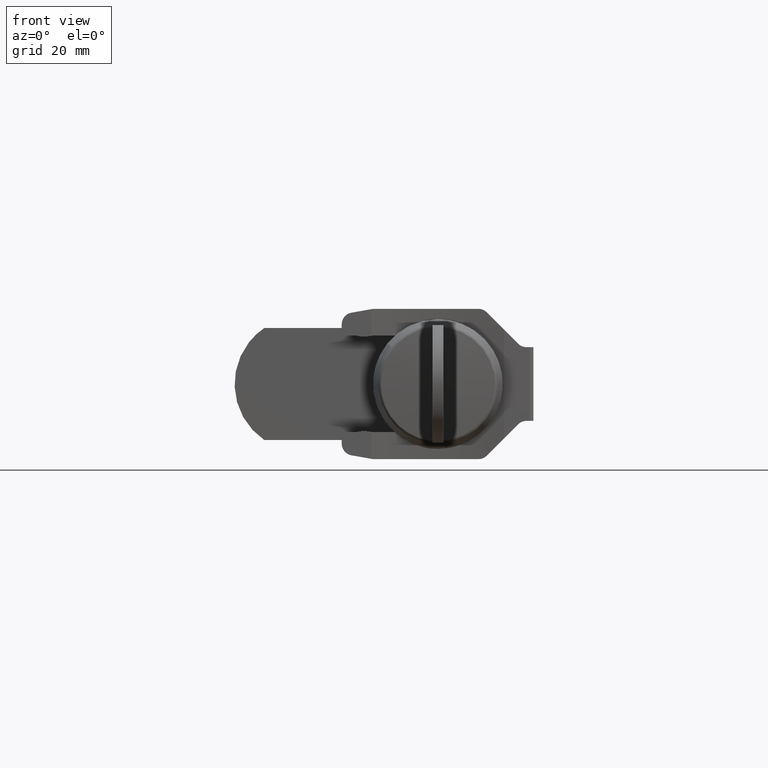
[diagram: clean part render]
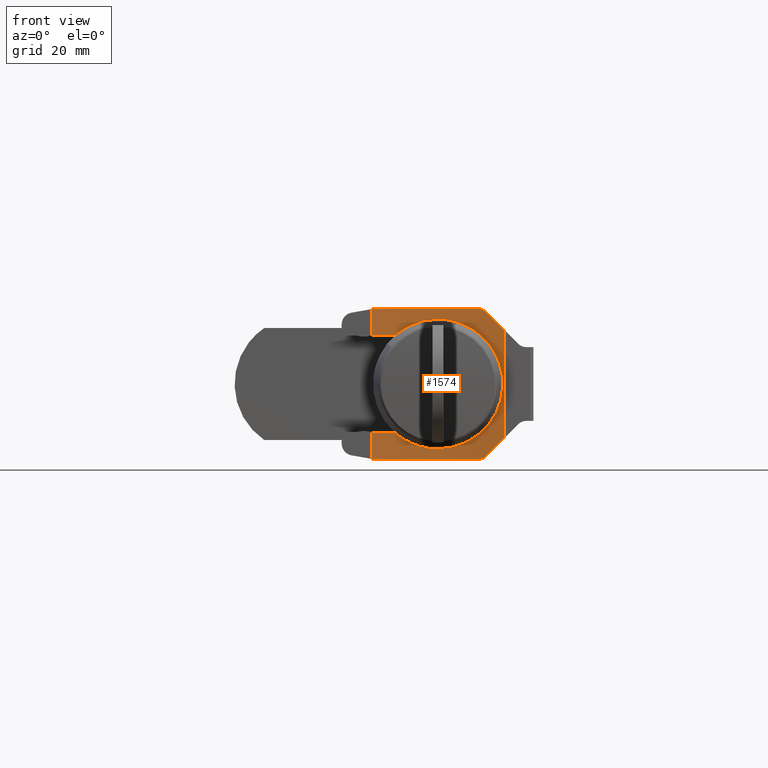
[diagram: same view with one face highlighted and labeled with its STEP entity id]
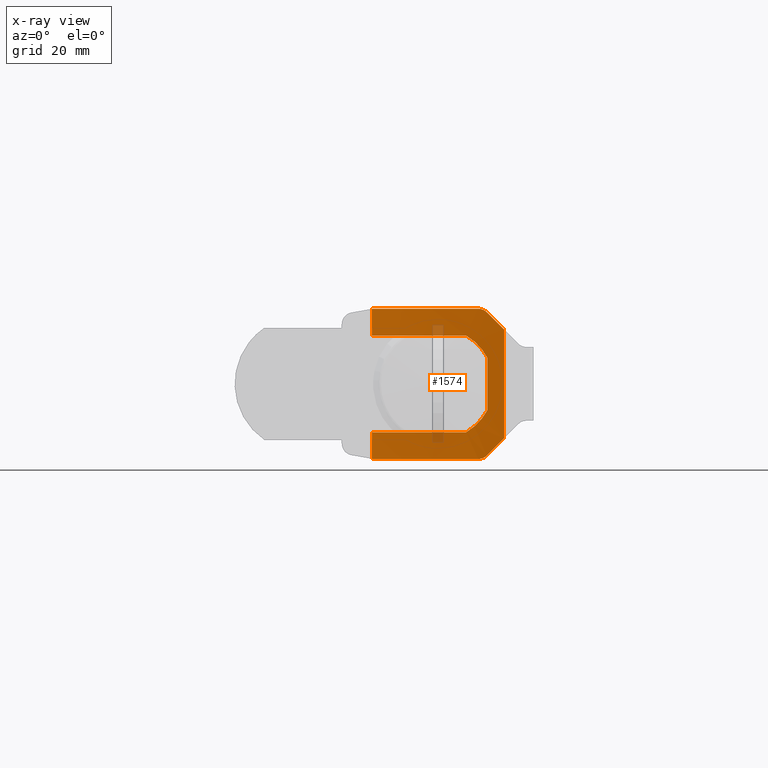
[diagram: x-ray of the same camera — body ghosted, the highlighted face saturated]
A machine part, front view. The second image highlights one B-rep face of the part: STEP entity #1574.
The next image is the same camera in x-ray: the body ghosted, the highlighted face saturated — about 3% of this face is hidden behind the body in this view.
In plain terms, the highlighted face is a freeform B-spline surface patch.
Its self-contained STEP definition (entity closure, byte-faithful):
#171=CARTESIAN_POINT('',(6.701256000000000,11.224889015041621,-12.710345971922139));
#172=VERTEX_POINT('',#171);
#201=CARTESIAN_POINT('',(6.737179202216060,11.0,-12.750000000000000));
#202=VERTEX_POINT('',#201);
#208=CARTESIAN_POINT('',(6.701256000000000,11.224889015041621,-12.710345971922139));
#209=CARTESIAN_POINT('',(6.719399350802776,11.112473539753079,-12.730167866791707));
#210=CARTESIAN_POINT('',(6.737179202216060,11.0,-12.750000000000000));
#218=(BOUNDED_CURVE()B_SPLINE_CURVE(2,(#208,#209,#210),.UNSPECIFIED.,.F.,.U.)CURVE()GEOMETRIC_REPRESENTATION_ITEM()QUASI_UNIFORM_CURVE()RATIONAL_B_SPLINE_CURVE((1.0,0.999998693911222,1.0))REPRESENTATION_ITEM(''));
#219=EDGE_CURVE('',#172,#202,#218,.T.);
#237=CARTESIAN_POINT('',(6.701256000000000,11.224889015041679,12.710345971922139));
#238=VERTEX_POINT('',#237);
#244=CARTESIAN_POINT('',(6.737179202216060,11.0,12.750000000000000));
#245=VERTEX_POINT('',#244);
#246=CARTESIAN_POINT('',(6.737179202216060,11.0,12.750000000000000));
#247=CARTESIAN_POINT('',(6.719399350802083,11.112473539757451,12.730167866790929));
#248=CARTESIAN_POINT('',(6.701256000000000,11.224889015041679,12.710345971922139));
#256=(BOUNDED_CURVE()B_SPLINE_CURVE(2,(#246,#247,#248),.UNSPECIFIED.,.F.,.U.)CURVE()GEOMETRIC_REPRESENTATION_ITEM()QUASI_UNIFORM_CURVE()RATIONAL_B_SPLINE_CURVE((1.0,0.999998693685393,1.0))REPRESENTATION_ITEM(''));
#257=EDGE_CURVE('',#245,#238,#256,.T.);
#298=CARTESIAN_POINT('',(7.437756559511180,-4.796873982084749,8.199999999999900));
#299=VERTEX_POINT('',#298);
#324=CARTESIAN_POINT('',(7.098675235076141,-8.400000000000000,4.437341546466749));
#325=VERTEX_POINT('',#324);
#331=CARTESIAN_POINT('',(7.437756559511180,-4.796873982084749,8.199999999999900));
#332=CARTESIAN_POINT('',(7.411649741750969,-5.179400142912241,7.976228074592561));
#333=CARTESIAN_POINT('',(7.383798323459934,-5.541706129844096,7.728542165214912));
#334=CARTESIAN_POINT('',(7.326299027665645,-6.227658055632018,7.187290586248619));
#335=CARTESIAN_POINT('',(7.296645575295067,-6.551298648907652,6.893719117221099));
#336=CARTESIAN_POINT('',(7.259486747010025,-6.931349469674033,6.497572574249896));
#337=CARTESIAN_POINT('',(7.252050530538040,-7.006129048879556,6.416877480835693));
#338=CARTESIAN_POINT('',(7.237196090471132,-7.153195711641636,6.252515650885004));
#339=CARTESIAN_POINT('',(7.229766695813301,-7.225589416448715,6.168719304727475));
#340=CARTESIAN_POINT('',(7.207633577062738,-7.438140985198493,5.913799099289979));
#341=CARTESIAN_POINT('',(7.193112970023629,-7.573424323080626,5.739492669629554));
#342=CARTESIAN_POINT('',(7.150561252174983,-7.960285834896091,5.203650425940917));
#343=CARTESIAN_POINT('',(7.123537934107416,-8.192969541685143,4.829255450689331));
#344=CARTESIAN_POINT('',(7.098675235076141,-8.400000000000000,4.437341546466749));
#345=B_SPLINE_CURVE_WITH_KNOTS('',3,(#331,#332,#333,#334,#335,#336,#337,#338,#339,#340,#341,#342,#343,#344),.UNSPECIFIED.,.F.,.U.,(4,2,2,2,2,2,4),(0.0,0.250000000000000,0.499999999999999,0.562499999999999,0.624999999999999,0.750000000000000,1.0),.UNSPECIFIED.);
#346=EDGE_CURVE('',#299,#325,#345,.T.);
#356=CARTESIAN_POINT('',(6.737179185010520,11.000000108840499,8.199999999999871));
#357=VERTEX_POINT('',#356);
#358=CARTESIAN_POINT('',(7.437756559511180,-4.796873982084749,8.199999999999900));
#359=CARTESIAN_POINT('',(7.979512653375348,3.141124459328319,8.199999999999871));
#360=CARTESIAN_POINT('',(6.737179185010520,11.000000108840499,8.199999999999871));
#368=(BOUNDED_CURVE()B_SPLINE_CURVE(2,(#358,#359,#360),.UNSPECIFIED.,.F.,.U.)CURVE()GEOMETRIC_REPRESENTATION_ITEM()QUASI_UNIFORM_CURVE()RATIONAL_B_SPLINE_CURVE((1.0,0.993682715742125,1.0))REPRESENTATION_ITEM(''));
#369=EDGE_CURVE('',#299,#357,#368,.T.);
#409=CARTESIAN_POINT('',(6.701256000000000,11.224889015041660,8.150979196819019));
#410=VERTEX_POINT('',#409);
#411=CARTESIAN_POINT('',(6.737179185010520,11.000000108840499,8.199999999999871));
#412=CARTESIAN_POINT('',(6.725370661431742,11.074699632578650,8.182329583521096));
#413=CARTESIAN_POINT('',(6.713397150677370,11.149662931459570,8.165990187034085));
#414=CARTESIAN_POINT('',(6.701256000000000,11.224889015041660,8.150979196819019));
#415=QUASI_UNIFORM_CURVE('',3,(#411,#412,#413,#414),.UNSPECIFIED.,.F.,.U.);
#416=EDGE_CURVE('',#357,#410,#415,.T.);
#480=CARTESIAN_POINT('',(6.701256000000000,11.224889015041660,-8.150980196819130));
#481=VERTEX_POINT('',#480);
#482=CARTESIAN_POINT('',(6.737179202216170,11.0,-8.200000000000221));
#483=VERTEX_POINT('',#482);
#484=CARTESIAN_POINT('',(6.701256000000000,11.224889015041660,-8.150980196819130));
#485=CARTESIAN_POINT('',(6.713397144291805,11.149662971024380,-8.165991179139207));
#486=CARTESIAN_POINT('',(6.725370648838812,11.074699711419370,-8.182330566336889));
#487=CARTESIAN_POINT('',(6.737179202216170,11.0,-8.200000000000221));
#488=QUASI_UNIFORM_CURVE('',3,(#484,#485,#486,#487),.UNSPECIFIED.,.F.,.U.);
#489=EDGE_CURVE('',#481,#483,#488,.T.);
#550=CARTESIAN_POINT('',(7.437756559511110,-4.796873982084200,-8.200000000000211));
#551=VERTEX_POINT('',#550);
#552=CARTESIAN_POINT('',(6.737179202216170,11.0,-8.200000000000221));
#553=CARTESIAN_POINT('',(7.979512649575971,3.141124403659279,-8.200000000000211));
#554=CARTESIAN_POINT('',(7.437756559511080,-4.796873982084190,-8.200000000000211));
#562=(BOUNDED_CURVE()B_SPLINE_CURVE(2,(#552,#553,#554),.UNSPECIFIED.,.F.,.U.)CURVE()GEOMETRIC_REPRESENTATION_ITEM()QUASI_UNIFORM_CURVE()RATIONAL_B_SPLINE_CURVE((1.0,0.993682715829894,1.0))REPRESENTATION_ITEM(''));
#563=EDGE_CURVE('',#483,#551,#562,.T.);
#605=CARTESIAN_POINT('',(7.098675235076141,-8.400000000000000,-4.437341546466755));
#606=VERTEX_POINT('',#605);
#630=CARTESIAN_POINT('',(7.098675235076141,-8.400000000000000,-4.437341546466755));
#631=CARTESIAN_POINT('',(7.123538574757169,-8.192964207027455,-4.829265549331529));
#632=CARTESIAN_POINT('',(7.150452930807292,-7.961161418627665,-5.202000869036179));
#633=CARTESIAN_POINT('',(7.206693991478534,-7.450059500262535,-5.910796699045458));
#634=CARTESIAN_POINT('',(7.236026098237167,-7.170754234661588,-6.246852057131341));
#635=CARTESIAN_POINT('',(7.273179659211994,-6.791424942180425,-6.643688889621473));
#636=CARTESIAN_POINT('',(7.280634688406300,-6.714042293584815,-6.721889343477574));
#637=CARTESIAN_POINT('',(7.295566972048070,-6.556202282428012,-6.875926984624601));
#638=CARTESIAN_POINT('',(7.303055526204961,-6.475620087673217,-6.951876263772649));
#639=CARTESIAN_POINT('',(7.325426327157862,-6.230148460058721,-7.175249583976715));
#640=CARTESIAN_POINT('',(7.340185056212576,-6.061871328388646,-7.317939567528402));
#641=CARTESIAN_POINT('',(7.383684424332686,-5.543319985537322,-7.727593260627449));
#642=CARTESIAN_POINT('',(7.411650187846649,-5.179393606561731,-7.976231898257201));
#643=CARTESIAN_POINT('',(7.437756559511100,-4.796873982084190,-8.200000000000232));
#644=B_SPLINE_CURVE_WITH_KNOTS('',3,(#630,#631,#632,#633,#634,#635,#636,#637,#638,#639,#640,#641,#642,#643),.UNSPECIFIED.,.F.,.U.,(4,2,2,2,2,2,4),(0.0,0.250000000000000,0.500000000000001,0.562500000000001,0.625000000000001,0.750000000000001,1.0),.UNSPECIFIED.);
#645=EDGE_CURVE('',#606,#551,#644,.T.);
#655=CARTESIAN_POINT('',(7.098675235076141,-8.400000000000000,-4.437341546466755));
#656=CARTESIAN_POINT('',(7.098675235076141,-8.400000000000000,4.437341546466749));
#657=QUASI_UNIFORM_CURVE('',1,(#655,#656),.UNSPECIFIED.,.F.,.U.);
#658=EDGE_CURVE('',#606,#325,#657,.T.);
#822=CARTESIAN_POINT('',(7.112296928359621,-8.285785304922289,-12.164213695077800));
#823=VERTEX_POINT('',#822);
#829=CARTESIAN_POINT('',(7.265329503481880,-6.871571875253689,-12.750000000000000));
#830=VERTEX_POINT('',#829);
#831=CARTESIAN_POINT('',(7.265329503481870,-6.871571875253689,-12.750000000000000));
#832=CARTESIAN_POINT('',(7.252392960293121,-7.003567922342728,-12.750000000000000));
#833=CARTESIAN_POINT('',(7.239298978243952,-7.133333390520710,-12.737061222085931));
#834=CARTESIAN_POINT('',(7.219461569553152,-7.324779351012579,-12.699060243223480));
#835=CARTESIAN_POINT('',(7.212816693591436,-7.388057049535646,-12.683271374732170));
#836=CARTESIAN_POINT('',(7.199473280523453,-7.513514619359334,-12.645311229561520));
#837=CARTESIAN_POINT('',(7.192752296867116,-7.575892906099058,-12.623024141592500));
#838=CARTESIAN_POINT('',(7.172960994306771,-7.757400187441930,-12.547903890435540));
#839=CARTESIAN_POINT('',(7.160127764479002,-7.872192590280910,-12.486607505171509));
#840=CARTESIAN_POINT('',(7.141546606920476,-8.035157529566755,-12.377983502885311));
#841=CARTESIAN_POINT('',(7.135455740874443,-8.088013601539988,-12.338907942070360));
#842=CARTESIAN_POINT('',(7.123575719816867,-8.190154197441594,-12.255224096750450));
#843=CARTESIAN_POINT('',(7.117831311999205,-8.239056420825273,-12.210942570404869));
#844=CARTESIAN_POINT('',(7.112296928359621,-8.285785304922289,-12.164213695077800));
#845=B_SPLINE_CURVE_WITH_KNOTS('',3,(#831,#832,#833,#834,#835,#836,#837,#838,#839,#840,#841,#842,#843,#844),.UNSPECIFIED.,.F.,.U.,(4,2,2,2,2,2,4),(0.0,0.250000000000001,0.375000000000000,0.500000000000000,0.750000000000001,0.875000000000001,1.0),.UNSPECIFIED.);
#846=EDGE_CURVE('',#830,#823,#845,.T.);
#891=CARTESIAN_POINT('',(7.265329503481880,-6.871571875253689,12.750000000000000));
#892=VERTEX_POINT('',#891);
#898=CARTESIAN_POINT('',(7.112296928359630,-8.285785304922239,12.164213695077720));
#899=VERTEX_POINT('',#898);
#900=CARTESIAN_POINT('',(7.112296928359630,-8.285785304922239,12.164213695077720));
#901=CARTESIAN_POINT('',(7.123365589934081,-8.192328429232823,12.257670553227751));
#902=CARTESIAN_POINT('',(7.135140011251933,-8.091315184443046,12.340339389621191));
#903=CARTESIAN_POINT('',(7.153658335553827,-7.928947363516358,12.448880618361549));
#904=CARTESIAN_POINT('',(7.159975375723761,-7.873003192517571,12.482464612759260));
#905=CARTESIAN_POINT('',(7.172880247388083,-7.757392114656093,12.544330187319231));
#906=CARTESIAN_POINT('',(7.179490822099289,-7.697509698307850,12.572666659311890));
#907=CARTESIAN_POINT('',(7.199279814478769,-7.516038608871599,12.647843719417979));
#908=CARTESIAN_POINT('',(7.212537784527823,-7.391551845148769,12.685626330771870));
#909=CARTESIAN_POINT('',(7.232433943089783,-7.199609066821544,12.723993089226930));
#910=CARTESIAN_POINT('',(7.239080001191859,-7.134635694023776,12.733720461165721));
#911=CARTESIAN_POINT('',(7.252317363819204,-7.003379386326845,12.746741400586989));
#912=CARTESIAN_POINT('',(7.258861450591744,-6.937567667282686,12.750000000000000));
#913=CARTESIAN_POINT('',(7.265329503481870,-6.871571875253689,12.750000000000000));
#914=B_SPLINE_CURVE_WITH_KNOTS('',3,(#900,#901,#902,#903,#904,#905,#906,#907,#908,#909,#910,#911,#912,#913),.UNSPECIFIED.,.F.,.U.,(4,2,2,2,2,2,4),(0.0,0.249999999999997,0.374999999999997,0.499999999999998,0.749999999999999,0.875000000000000,1.0),.UNSPECIFIED.);
#915=EDGE_CURVE('',#899,#892,#914,.T.);
#991=CARTESIAN_POINT('',(6.701255999999920,-11.224889015041580,-9.225110536547600));
#992=VERTEX_POINT('',#991);
#993=CARTESIAN_POINT('',(7.112296928359621,-8.285785304922289,-12.164213695077800));
#994=CARTESIAN_POINT('',(6.937736232605532,-9.759666960223838,-10.690332316383463));
#995=CARTESIAN_POINT('',(6.701255999999920,-11.224889015041580,-9.225110536547600));
#1003=(BOUNDED_CURVE()B_SPLINE_CURVE(2,(#993,#994,#995),.UNSPECIFIED.,.F.,.U.)CURVE()GEOMETRIC_REPRESENTATION_ITEM()QUASI_UNIFORM_CURVE()RATIONAL_B_SPLINE_CURVE((1.0,0.999778154284892,1.0))REPRESENTATION_ITEM(''));
#1004=EDGE_CURVE('',#823,#992,#1003,.T.);
#1100=CARTESIAN_POINT('',(6.701255999999920,-11.224889015041580,9.225110536547600));
#1101=VERTEX_POINT('',#1100);
#1129=CARTESIAN_POINT('',(6.701255999999920,-11.224889015041580,9.225110536547600));
#1130=CARTESIAN_POINT('',(6.937736232605546,-9.759666960223726,10.690332316383479));
#1131=CARTESIAN_POINT('',(7.112296928359630,-8.285785304922239,12.164213695077720));
#1139=(BOUNDED_CURVE()B_SPLINE_CURVE(2,(#1129,#1130,#1131),.UNSPECIFIED.,.F.,.U.)CURVE()GEOMETRIC_REPRESENTATION_ITEM()QUASI_UNIFORM_CURVE()RATIONAL_B_SPLINE_CURVE((1.0,0.999778154286036,1.0))REPRESENTATION_ITEM(''));
#1140=EDGE_CURVE('',#1101,#899,#1139,.T.);
#1210=CARTESIAN_POINT('',(7.265329503481855,-6.871571875253700,12.750000000000000));
#1211=CARTESIAN_POINT('',(8.144410511173609,2.097997227817485,12.749999999999998));
#1212=CARTESIAN_POINT('',(6.737179202216060,11.0,12.750000000000000));
#1220=(BOUNDED_CURVE()B_SPLINE_CURVE(2,(#1210,#1211,#1212),.UNSPECIFIED.,.F.,.U.)CURVE()GEOMETRIC_REPRESENTATION_ITEM()QUASI_UNIFORM_CURVE()RATIONAL_B_SPLINE_CURVE((1.0,0.991916035415188,1.0))REPRESENTATION_ITEM(''));
#1221=EDGE_CURVE('',#892,#245,#1220,.T.);
#1245=CARTESIAN_POINT('',(7.265329503481855,-6.871571875253700,-12.750000000000000));
#1246=CARTESIAN_POINT('',(8.144410511173609,2.097997227817485,-12.749999999999998));
#1247=CARTESIAN_POINT('',(6.737179202216032,10.999999999999980,-12.750000000000000));
#1255=(BOUNDED_CURVE()B_SPLINE_CURVE(2,(#1245,#1246,#1247),.UNSPECIFIED.,.F.,.U.)CURVE()GEOMETRIC_REPRESENTATION_ITEM()QUASI_UNIFORM_CURVE()RATIONAL_B_SPLINE_CURVE((1.0,0.991916035415188,1.0))REPRESENTATION_ITEM(''));
#1256=EDGE_CURVE('',#830,#202,#1255,.T.);
#1337=CARTESIAN_POINT('',(6.701255999999920,-11.224889015041580,-9.225110536547600));
#1338=CARTESIAN_POINT('',(6.701255999999920,-11.224889015041580,9.225110536547600));
#1339=QUASI_UNIFORM_CURVE('',1,(#1337,#1338),.UNSPECIFIED.,.F.,.U.);
#1340=EDGE_CURVE('',#992,#1101,#1339,.T.);
#1514=CARTESIAN_POINT('',(6.701256000000000,11.224889015041660,8.150979196819019));
#1515=CARTESIAN_POINT('',(6.701256000000000,11.224889015041679,12.710345971922139));
#1516=QUASI_UNIFORM_CURVE('',1,(#1514,#1515),.UNSPECIFIED.,.F.,.U.);
#1517=EDGE_CURVE('',#410,#238,#1516,.T.);
#1530=CARTESIAN_POINT('',(6.701256000000000,11.224889015041621,-12.710345971922139));
#1531=CARTESIAN_POINT('',(6.701256000000000,11.224889015041660,-8.150980196819130));
#1532=QUASI_UNIFORM_CURVE('',1,(#1530,#1531),.UNSPECIFIED.,.F.,.U.);
#1533=EDGE_CURVE('',#172,#481,#1532,.T.);
#1540=CARTESIAN_POINT('',(6.514150433440410,12.328386802758894,-13.387500000000006));
#1541=CARTESIAN_POINT('',(6.514150433440410,12.328386802758894,13.403437423706054));
#1542=CARTESIAN_POINT('',(8.705646738916723,-0.001389731535335,-13.387499999999999));
#1543=CARTESIAN_POINT('',(8.705646738916723,-0.001389731535335,13.403437423706052));
#1544=CARTESIAN_POINT('',(6.513671489569327,-12.331081128678955,-13.387499999999999));
#1545=CARTESIAN_POINT('',(6.513671489569327,-12.331081128678955,13.403437423706052));
#1553=(BOUNDED_SURFACE()B_SPLINE_SURFACE(1,2,((#1540,#1542,#1544),(#1541,#1543,#1545)),.UNSPECIFIED.,.F.,.F.,.U.)B_SPLINE_SURFACE_WITH_KNOTS((2,2),(3,3),(0.0,26.790937423706058),(0.732068968361616,25.584636377745870),.UNSPECIFIED.)GEOMETRIC_REPRESENTATION_ITEM()RATIONAL_B_SPLINE_SURFACE(((0.998990860818196,0.982315163434144,0.996439557006956),(0.998990860818196,0.982315163434144,0.996439557006956)))REPRESENTATION_ITEM('')SURFACE());
#1554=ORIENTED_EDGE('',*,*,#1533,.F.);
#1555=ORIENTED_EDGE('',*,*,#219,.T.);
#1556=ORIENTED_EDGE('',*,*,#1256,.F.);
#1557=ORIENTED_EDGE('',*,*,#846,.T.);
#1558=ORIENTED_EDGE('',*,*,#1004,.T.);
#1559=ORIENTED_EDGE('',*,*,#1340,.T.);
#1560=ORIENTED_EDGE('',*,*,#1140,.T.);
#1561=ORIENTED_EDGE('',*,*,#915,.T.);
#1562=ORIENTED_EDGE('',*,*,#1221,.T.);
#1563=ORIENTED_EDGE('',*,*,#257,.T.);
#1564=ORIENTED_EDGE('',*,*,#1517,.F.);
#1565=ORIENTED_EDGE('',*,*,#416,.F.);
#1566=ORIENTED_EDGE('',*,*,#369,.F.);
#1567=ORIENTED_EDGE('',*,*,#346,.T.);
#1568=ORIENTED_EDGE('',*,*,#658,.F.);
#1569=ORIENTED_EDGE('',*,*,#645,.T.);
#1570=ORIENTED_EDGE('',*,*,#563,.F.);
#1571=ORIENTED_EDGE('',*,*,#489,.F.);
#1572=EDGE_LOOP('',(#1554,#1555,#1556,#1557,#1558,#1559,#1560,#1561,#1562,#1563,#1564,#1565,#1566,#1567,#1568,#1569,#1570,#1571));
#1573=FACE_OUTER_BOUND('',#1572,.T.);
#1574=ADVANCED_FACE('',(#1573),#1553,.F.);